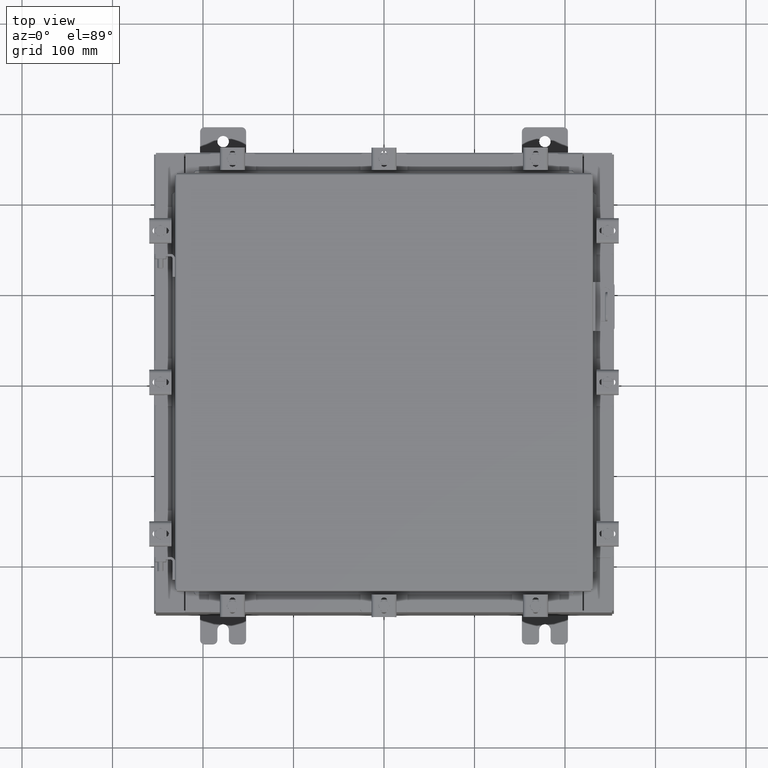
[diagram: clean part render]
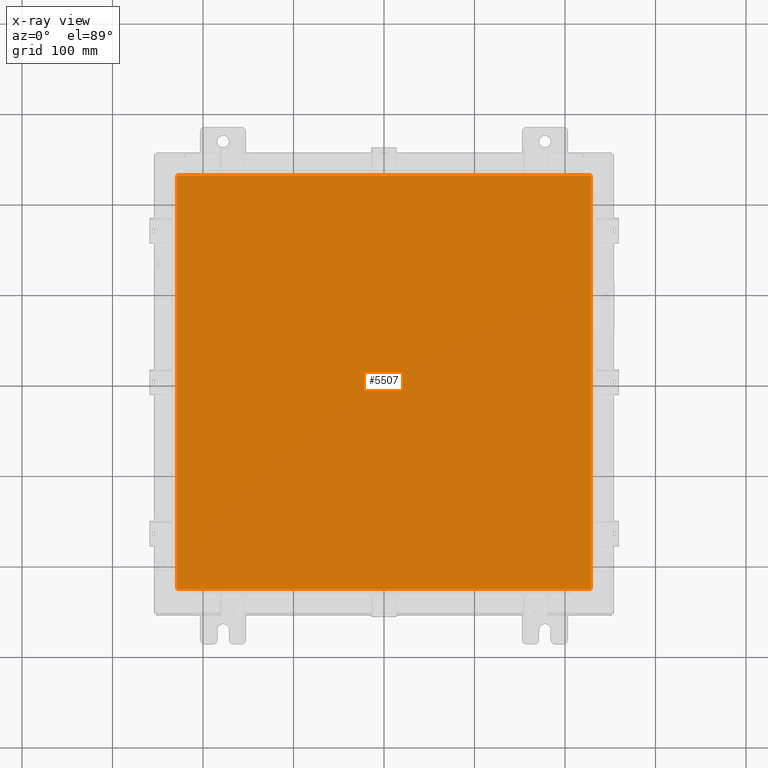
[diagram: x-ray — body ghosted, one internal face saturated and labeled with its STEP entity id]
A machine part, top view, then the same camera in x-ray: the body is ghosted and one INTERNAL B-rep face — a face not visible from any outside direction — is saturated and labeled: STEP entity #5507.
In plain terms, the highlighted planar face has unit normal (0, 0, -1).
Its self-contained STEP definition (entity closure, byte-faithful):
#438 = PLANE ( 'NONE',  #17266 ) ;
#643 = VECTOR ( 'NONE', #13464, 39.37007874015748100 ) ;
#816 = CARTESIAN_POINT ( 'NONE',  ( 0.0000000000000000000, 0.0000000000000000000, -0.07470000000000015500 ) ) ;
#1170 = LINE ( 'NONE', #22159, #14028 ) ;
#3161 = EDGE_CURVE ( 'NONE', #13007, #19179, #6028, .T. ) ;
#3766 = LINE ( 'NONE', #17812, #12510 ) ;
#4490 = VERTEX_POINT ( 'NONE', #10156 ) ;
#5507 = ADVANCED_FACE ( 'NONE', ( #8353 ), #438, .T. ) ;
#6028 = LINE ( 'NONE', #17423, #10082 ) ;
#7352 = DIRECTION ( 'NONE',  ( -1.000000000000000000, -0.0000000000000000000, -0.0000000000000000000 ) ) ;
#7635 = EDGE_CURVE ( 'NONE', #4490, #8399, #14023, .T. ) ;
#8353 = FACE_OUTER_BOUND ( 'NONE', #21628, .T. ) ;
#8399 = VERTEX_POINT ( 'NONE', #22233 ) ;
#8435 = EDGE_CURVE ( 'NONE', #8399, #13007, #1170, .T. ) ;
#8871 = ORIENTED_EDGE ( 'NONE', *, *, #3161, .F. ) ;
#8949 = CARTESIAN_POINT ( 'NONE',  ( 9.006299999999999500, 9.006299999999999500, -0.07470000000000015500 ) ) ;
#9349 = CARTESIAN_POINT ( 'NONE',  ( 9.006300000000001300, -9.006299999999999500, -0.07470000000000015500 ) ) ;
#9520 = DIRECTION ( 'NONE',  ( 0.0000000000000000000, 0.0000000000000000000, -1.000000000000000000 ) ) ;
#9802 = DIRECTION ( 'NONE',  ( 0.0000000000000000000, 1.000000000000000000, 0.0000000000000000000 ) ) ;
#9942 = CARTESIAN_POINT ( 'NONE',  ( -9.006299999999997800, 9.006299999999999500, -0.07470000000000125200 ) ) ;
#9973 = DIRECTION ( 'NONE',  ( 1.000000000000000000, -0.0000000000000000000, -0.0000000000000000000 ) ) ;
#10082 = VECTOR ( 'NONE', #9802, 39.37007874015748100 ) ;
#10156 = CARTESIAN_POINT ( 'NONE',  ( -9.006299999999997800, 9.006299999999997800, -0.07470000000000015500 ) ) ;
#10968 = ORIENTED_EDGE ( 'NONE', *, *, #12914, .F. ) ;
#12510 = VECTOR ( 'NONE', #7352, 39.37007874015748100 ) ;
#12914 = EDGE_CURVE ( 'NONE', #19179, #4490, #3766, .T. ) ;
#13007 = VERTEX_POINT ( 'NONE', #9349 ) ;
#13464 = DIRECTION ( 'NONE',  ( 0.0000000000000000000, -1.000000000000000000, 0.0000000000000000000 ) ) ;
#14023 = LINE ( 'NONE', #9942, #643 ) ;
#14028 = VECTOR ( 'NONE', #9973, 39.37007874015748100 ) ;
#16672 = ORIENTED_EDGE ( 'NONE', *, *, #8435, .F. ) ;
#16811 = ORIENTED_EDGE ( 'NONE', *, *, #7635, .F. ) ;
#17266 = AXIS2_PLACEMENT_3D ( 'NONE', #816, #9520, #19948 ) ;
#17423 = CARTESIAN_POINT ( 'NONE',  ( 9.006300000000001300, -9.006299999999999500, -0.07470000000000015500 ) ) ;
#17812 = CARTESIAN_POINT ( 'NONE',  ( 9.006300000000001300, 9.006299999999999500, -0.07470000000000015500 ) ) ;
#19179 = VERTEX_POINT ( 'NONE', #8949 ) ;
#19948 = DIRECTION ( 'NONE',  ( -1.000000000000000000, 0.0000000000000000000, -0.0000000000000000000 ) ) ;
#21628 = EDGE_LOOP ( 'NONE', ( #8871, #16672, #16811, #10968 ) ) ;
#22159 = CARTESIAN_POINT ( 'NONE',  ( -9.006299999999997800, -9.006299999999999500, -0.07470000000000015500 ) ) ;
#22233 = CARTESIAN_POINT ( 'NONE',  ( -9.006299999999997800, -9.006299999999999500, -0.07470000000000015500 ) ) ;